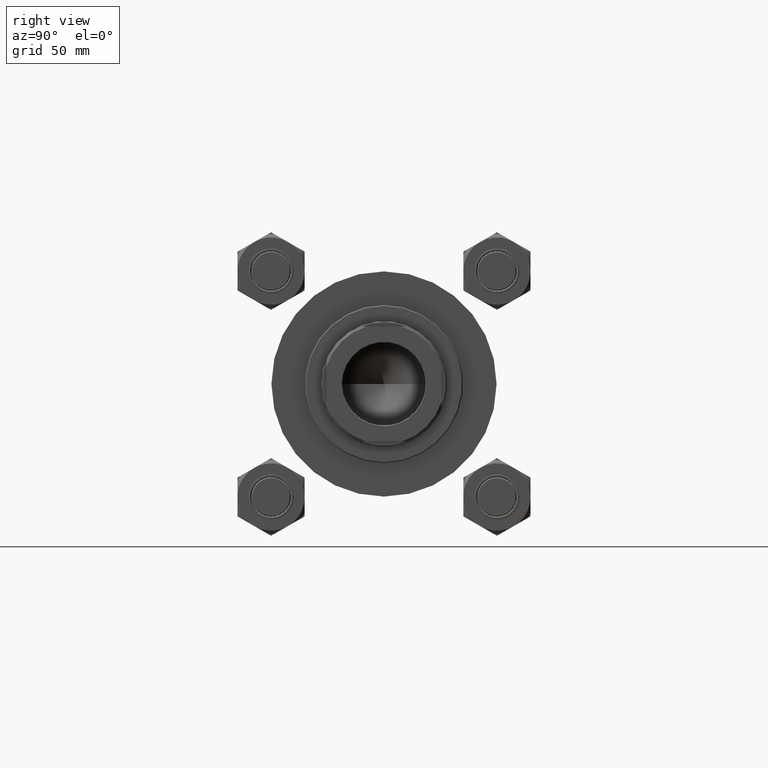
[diagram: clean part render]
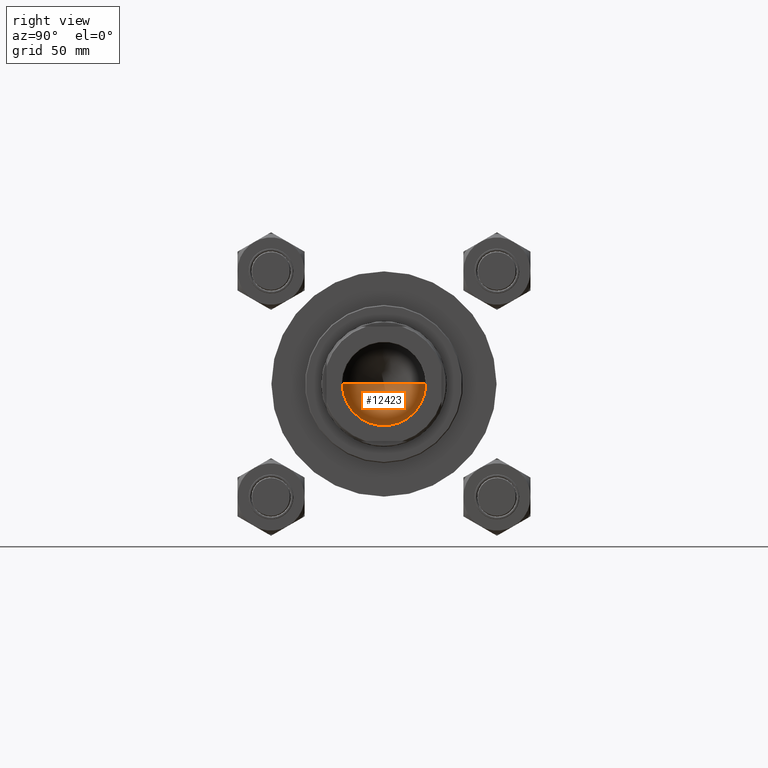
[diagram: same view with one face highlighted and labeled with its STEP entity id]
A machine part, right view. The second image highlights one B-rep face of the part: STEP entity #12423.
In plain terms, the highlighted conical surface has half-angle 59 deg.
Its self-contained STEP definition (entity closure, byte-faithful):
#813 = DIRECTION ( 'NONE',  ( 0.8571673007021117785, 0.000000000000000000, 0.5150380749100550437 ) ) ;
#1777 = CARTESIAN_POINT ( 'NONE',  ( 0.000000000000000000, 0.000000000000000000, 128.9999999999999716 ) ) ;
#2020 = DIRECTION ( 'NONE',  ( -0.000000000000000000, -0.000000000000000000, 1.000000000000000000 ) ) ;
#2419 = VERTEX_POINT ( 'NONE', #43875 ) ;
#4555 = CARTESIAN_POINT ( 'NONE',  ( 23.24999999999998579, 0.000000000000000000, 128.9999999999999716 ) ) ;
#5389 = ORIENTED_EDGE ( 'NONE', *, *, #6211, .T. ) ;
#5432 = EDGE_LOOP ( 'NONE', ( #32948, #13759, #5389 ) ) ;
#6211 = EDGE_CURVE ( 'NONE', #27110, #30901, #21209, .T. ) ;
#10200 = CARTESIAN_POINT ( 'NONE',  ( -23.24999999999998579, 2.847303808017594561E-15, 128.9999999999999716 ) ) ;
#12423 = ADVANCED_FACE ( 'NONE', ( #19365 ), #28104, .F. ) ;
#13018 = DIRECTION ( 'NONE',  ( -0.8571673007021117785, 1.049727191138617956E-16, 0.5150380749100550437 ) ) ;
#13759 = ORIENTED_EDGE ( 'NONE', *, *, #40954, .T. ) ;
#16760 = AXIS2_PLACEMENT_3D ( 'NONE', #42744, #31077, #46565 ) ;
#16763 = VECTOR ( 'NONE', #13018, 1000.000000000000000 ) ;
#16822 = LINE ( 'NONE', #10200, #16763 ) ;
#18605 = CARTESIAN_POINT ( 'NONE',  ( -23.24999999999998579, 2.847303808017594561E-15, 128.9999999999999716 ) ) ;
#19365 = FACE_OUTER_BOUND ( 'NONE', #5432, .T. ) ;
#21209 = CIRCLE ( 'NONE', #31801, 23.24999999999998579 ) ;
#24653 = EDGE_CURVE ( 'NONE', #2419, #30901, #16822, .T. ) ;
#24705 = CARTESIAN_POINT ( 'NONE',  ( 23.24999999999998579, 0.000000000000000000, 128.9999999999999716 ) ) ;
#27110 = VERTEX_POINT ( 'NONE', #4555 ) ;
#28104 = CONICAL_SURFACE ( 'NONE', #16760, 23.24999999999998579, 1.029744258676653423 ) ;
#28744 = DIRECTION ( 'NONE',  ( 1.000000000000000000, 0.000000000000000000, 0.000000000000000000 ) ) ;
#30178 = VECTOR ( 'NONE', #813, 1000.000000000000000 ) ;
#30901 = VERTEX_POINT ( 'NONE', #18605 ) ;
#31077 = DIRECTION ( 'NONE',  ( -0.000000000000000000, -0.000000000000000000, 1.000000000000000000 ) ) ;
#31801 = AXIS2_PLACEMENT_3D ( 'NONE', #1777, #2020, #28744 ) ;
#32948 = ORIENTED_EDGE ( 'NONE', *, *, #24653, .F. ) ;
#40220 = LINE ( 'NONE', #24705, #30178 ) ;
#40954 = EDGE_CURVE ( 'NONE', #2419, #27110, #40220, .T. ) ;
#42744 = CARTESIAN_POINT ( 'NONE',  ( 0.000000000000000000, 0.000000000000000000, 128.9999999999999716 ) ) ;
#43875 = CARTESIAN_POINT ( 'NONE',  ( -1.584115414415908206E-14, 0.000000000000000000, 115.0299906076091787 ) ) ;
#46565 = DIRECTION ( 'NONE',  ( 1.000000000000000000, 0.000000000000000000, 0.000000000000000000 ) ) ;